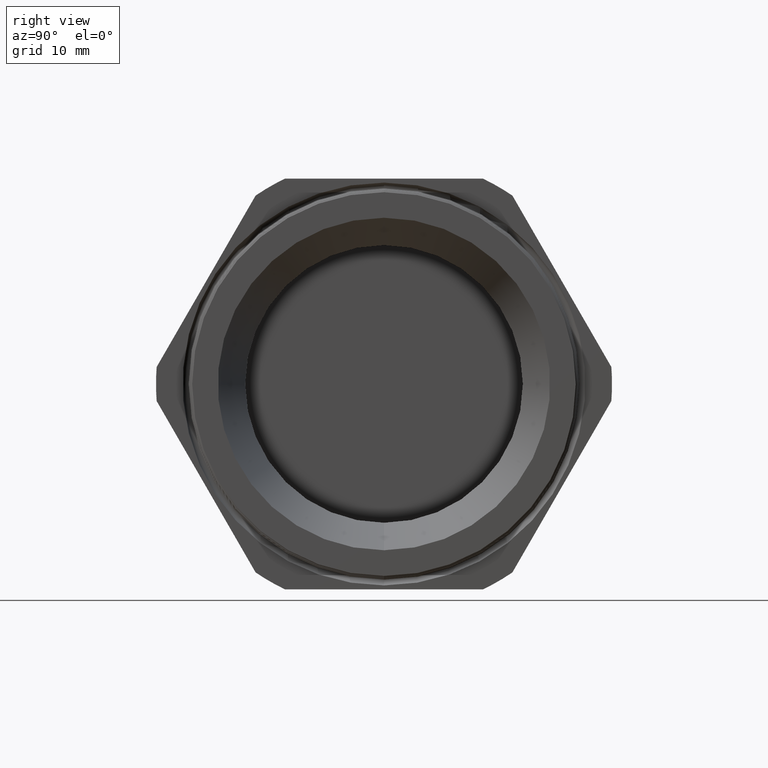
[diagram: clean part render]
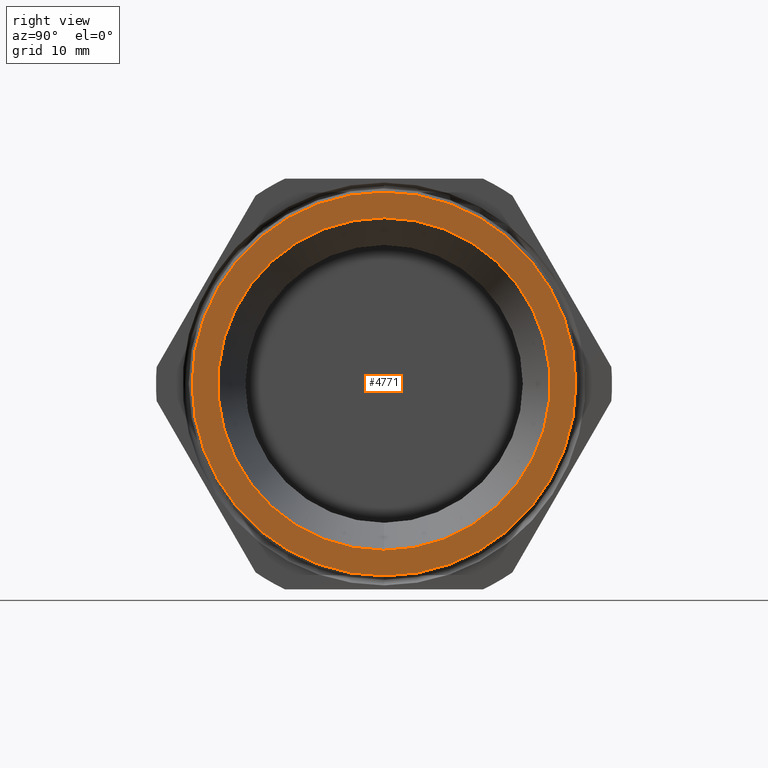
[diagram: same view with one face highlighted and labeled with its STEP entity id]
A machine part, right view. The second image highlights one B-rep face of the part: STEP entity #4771.
In plain terms, the highlighted planar face has unit normal (1, 0, 0).
Its self-contained STEP definition (entity closure, byte-faithful):
#2787 = DIRECTION ( 'NONE',  ( 0.0000000000000000000, 0.0000000000000000000, -1.000000000000000000 ) ) ;
#2788 = DIRECTION ( 'NONE',  ( 1.000000000000000000, 0.0000000000000000000, 0.0000000000000000000 ) ) ;
#2789 = CARTESIAN_POINT ( 'NONE',  ( 0.2400000000000001000, 0.0000000000000000000, 0.0000000000000000000 ) ) ;
#2790 = AXIS2_PLACEMENT_3D ( 'NONE', #2789, #2788, #2787 ) ;
#2795 = CIRCLE ( 'NONE', #2790, 1.035989651745368600 ) ;
#2842 = DIRECTION ( 'NONE',  ( 0.0000000000000000000, 0.0000000000000000000, -1.000000000000000000 ) ) ;
#2843 = DIRECTION ( 'NONE',  ( 1.000000000000000000, 0.0000000000000000000, 0.0000000000000000000 ) ) ;
#2844 = CARTESIAN_POINT ( 'NONE',  ( 0.2400000000000001000, 1.035989651745368600, 0.0000000000000000000 ) ) ;
#2845 = AXIS2_PLACEMENT_3D ( 'NONE', #2844, #2843, #2842 ) ;
#2846 = PLANE ( 'NONE',  #2845 ) ;
#2847 = FACE_BOUND ( 'NONE', #4746, .T. ) ;
#2848 = FACE_OUTER_BOUND ( 'NONE', #4775, .T. ) ;
#2854 = DIRECTION ( 'NONE',  ( 0.0000000000000000000, 0.0000000000000000000, -1.000000000000000000 ) ) ;
#2855 = DIRECTION ( 'NONE',  ( 1.000000000000000000, 0.0000000000000000000, 0.0000000000000000000 ) ) ;
#2856 = CARTESIAN_POINT ( 'NONE',  ( 0.2400000000000001000, 0.0000000000000000000, 0.0000000000000000000 ) ) ;
#2857 = AXIS2_PLACEMENT_3D ( 'NONE', #2856, #2855, #2854 ) ;
#2862 = CIRCLE ( 'NONE', #2857, 1.195717231016939700 ) ;
#3334 = CARTESIAN_POINT ( 'NONE',  ( 0.2400000000000001000, 0.0000000000000000000, 1.195717231016939700 ) ) ;
#3339 = DIRECTION ( 'NONE',  ( 0.0000000000000000000, 0.0000000000000000000, -1.000000000000000000 ) ) ;
#3340 = DIRECTION ( 'NONE',  ( 1.000000000000000000, 0.0000000000000000000, 0.0000000000000000000 ) ) ;
#3341 = CARTESIAN_POINT ( 'NONE',  ( 0.2400000000000001000, 0.0000000000000000000, 0.0000000000000000000 ) ) ;
#3342 = AXIS2_PLACEMENT_3D ( 'NONE', #3341, #3340, #3339 ) ;
#3343 = CIRCLE ( 'NONE', #3342, 1.195717231016939700 ) ;
#3344 = CARTESIAN_POINT ( 'NONE',  ( 0.2400000000000001000, 1.466266477401930200E-016, -1.195717231016939700 ) ) ;
#3580 = DIRECTION ( 'NONE',  ( 0.0000000000000000000, 0.0000000000000000000, -1.000000000000000000 ) ) ;
#3581 = DIRECTION ( 'NONE',  ( 1.000000000000000000, 0.0000000000000000000, 0.0000000000000000000 ) ) ;
#3582 = CARTESIAN_POINT ( 'NONE',  ( 0.2400000000000001000, 0.0000000000000000000, 0.0000000000000000000 ) ) ;
#3583 = AXIS2_PLACEMENT_3D ( 'NONE', #3582, #3581, #3580 ) ;
#3584 = CIRCLE ( 'NONE', #3583, 1.035989651745368600 ) ;
#3589 = CARTESIAN_POINT ( 'NONE',  ( 0.2400000000000001000, 0.0000000000000000000, -1.035989651745368600 ) ) ;
#3631 = CARTESIAN_POINT ( 'NONE',  ( 0.2400000000000001000, 1.268721410959747000E-016, 1.035989651745368600 ) ) ;
#4725 = EDGE_CURVE ( 'NONE', #5213, #5224, #2795, .T. ) ;
#4731 = ORIENTED_EDGE ( 'NONE', *, *, #5218, .F. ) ;
#4746 = EDGE_LOOP ( 'NONE', ( #4760, #4731 ) ) ;
#4760 = ORIENTED_EDGE ( 'NONE', *, *, #4725, .F. ) ;
#4764 = ORIENTED_EDGE ( 'NONE', *, *, #5076, .T. ) ;
#4768 = EDGE_CURVE ( 'NONE', #5078, #5075, #2862, .T. ) ;
#4769 = ORIENTED_EDGE ( 'NONE', *, *, #4768, .T. ) ;
#4771 = ADVANCED_FACE ( 'NONE', ( #2848, #2847 ), #2846, .T. ) ;
#4775 = EDGE_LOOP ( 'NONE', ( #4769, #4764 ) ) ;
#5075 = VERTEX_POINT ( 'NONE', #3344 ) ;
#5076 = EDGE_CURVE ( 'NONE', #5075, #5078, #3343, .T. ) ;
#5078 = VERTEX_POINT ( 'NONE', #3334 ) ;
#5213 = VERTEX_POINT ( 'NONE', #3589 ) ;
#5218 = EDGE_CURVE ( 'NONE', #5224, #5213, #3584, .T. ) ;
#5224 = VERTEX_POINT ( 'NONE', #3631 ) ;